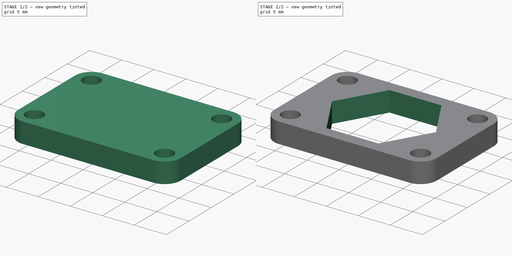
[diagram: build sequence overview — one tinted view per stage of 2, left to right]
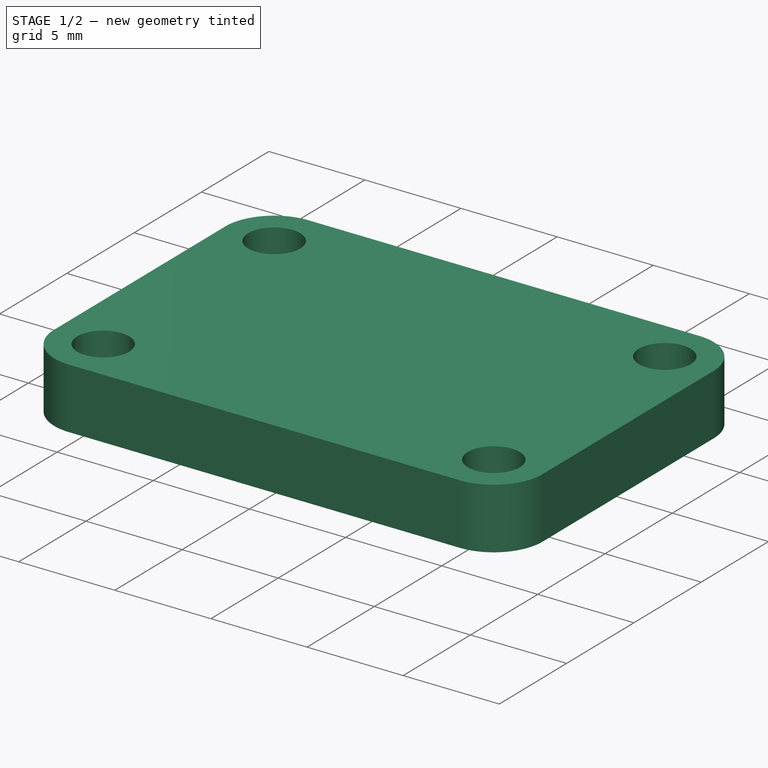
[diagram: stage 1 of 2 — iso view after this stage's code; geometry added in this stage tinted green]
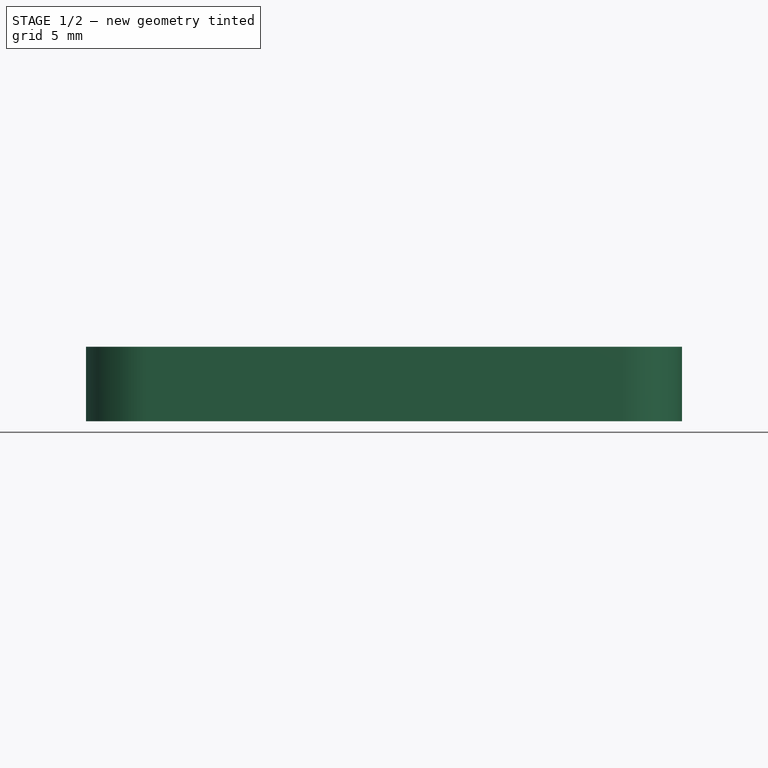
[diagram: stage 1 of 2 — front view after this stage's code; geometry added in this stage tinted green]
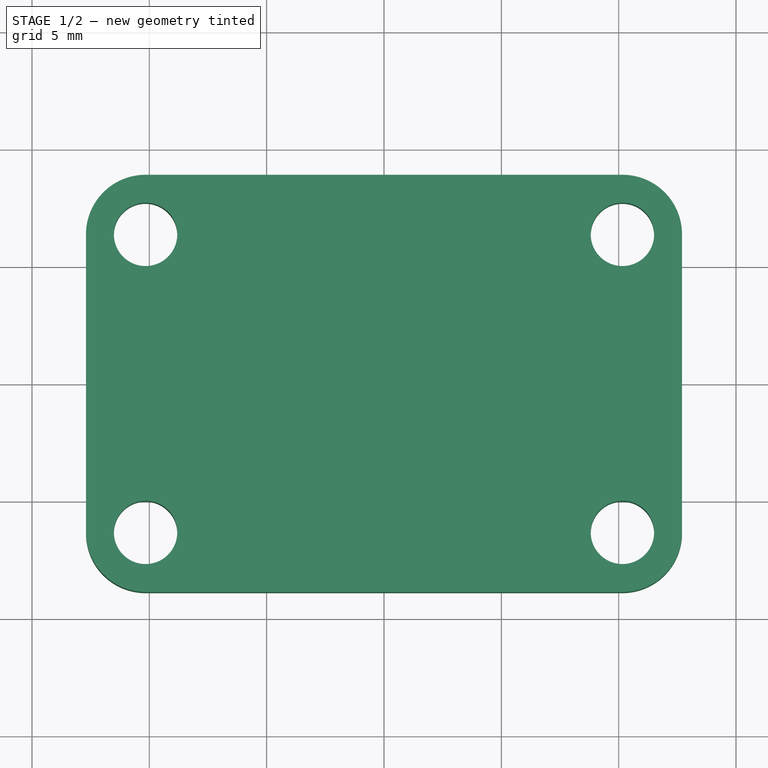
[diagram: stage 1 of 2 — top view after this stage's code; geometry added in this stage tinted green]
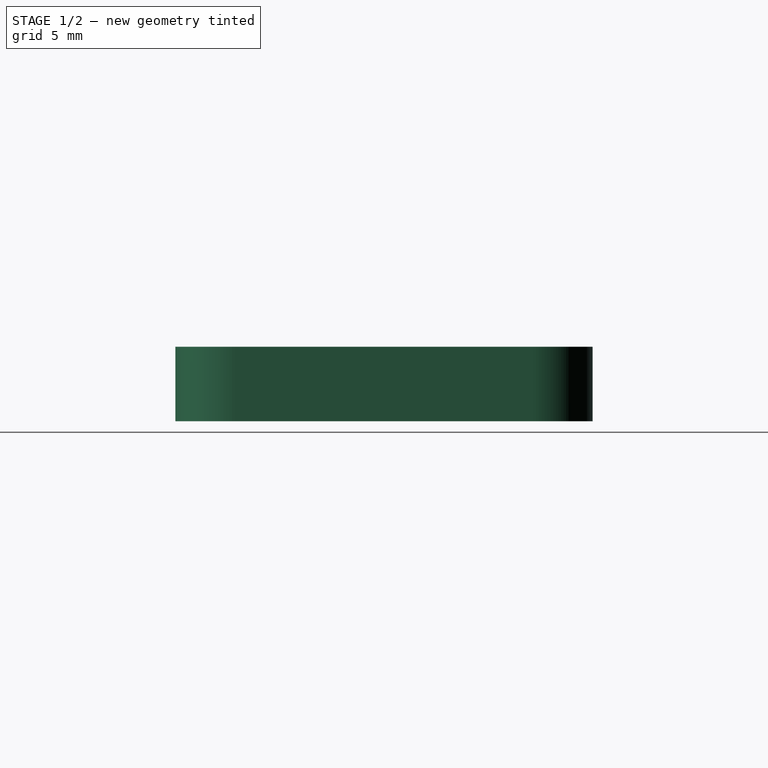
[diagram: stage 1 of 2 — right view after this stage's code; geometry added in this stage tinted green]
FCSTD DOCUMENT  (FreeCAD 0.20R29177 (Git))
Label: specto_mount
License: All rights reserved
LicenseURL: http://en.wikipedia.org/wiki/All_rights_reserved
objects: Sketcher::SketchObject×3, PartDesign::Pocket×2, Spreadsheet::Sheet×1, PartDesign::Pad×1, PartDesign::Body×1
note: 10 computed .brp shape members not serialized (recipe doc carries the construction recipe); baked Part::Feature solids carry a one-line shape summary decoded from their .brp

FEATURE [Spreadsheet::Sheet] Spreadsheet
  cells = A2=Width; B2(Width)==25.4mm; A3=Height; B3(Height)==17.78mm; A4=Thickness; B4(Thickness)==0.125in; A5=CornerRadius; B5(CornerRadius)==0.1in; A6=MountHoleDiameter; B6(MountHoleDiameter)==2.7mm; C6=M2.5 through hole; A7=MountHoleVerticalSpacing; B7(MountHoleVerticalSpacing)==12.7mm; A8=MountHoleHorizontalSpacing; B8(MountHoleHorizontalSpacing)==20.32mm; A9=SensorHexNutShortDiagonal; B9(SensorHexNutShortDiagonal)==14.05mm
FEATURE [Sketcher::SketchObject] Sketch  label="PlateSketch"
  FullyConstrained = true
  MapMode = 5
  Support = -> [XY_Plane]
  expr: Constraints[20] = Spreadsheet.CornerRadius
  expr: Constraints[21] = Spreadsheet.Width
  expr: Constraints[22] = Spreadsheet.Height
  sketch-geometry (10):
    g0: ArcOfCircle CenterX=-10.16 CenterY=6.35 CenterZ=0 NormalX=0 NormalY=0 NormalZ=1 AngleXU=0 Radius=2.54 StartAngle=1.5708 EndAngle=3.14159
    g1: LineSegment StartX=-10.16 StartY=8.89 StartZ=0 EndX=10.16 EndY=8.89 EndZ=0
    g2: ArcOfCircle CenterX=10.16 CenterY=6.35 CenterZ=0 NormalX=0 NormalY=0 NormalZ=1 AngleXU=0 Radius=2.54 StartAngle=5.919e-13 EndAngle=1.5708
    g3: LineSegment StartX=12.7 StartY=6.35 StartZ=0 EndX=12.7 EndY=-6.35 EndZ=0
    g4: ArcOfCircle CenterX=10.16 CenterY=-6.35 CenterZ=0 NormalX=0 NormalY=0 NormalZ=1 AngleXU=0 Radius=2.54 StartAngle=4.71239 EndAngle=6.28319
    g5: LineSegment StartX=10.16 StartY=-8.89 StartZ=0 EndX=-10.16 EndY=-8.89 EndZ=0
    g6: ArcOfCircle CenterX=-10.16 CenterY=-6.35 CenterZ=0 NormalX=0 NormalY=0 NormalZ=1 AngleXU=0 Radius=2.54 StartAngle=3.14159 EndAngle=4.71239
    g7: LineSegment StartX=-12.7 StartY=-6.35 StartZ=0 EndX=-12.7 EndY=6.35 EndZ=0
    g8: GeomPoint X=-12.7 Y=8.89 Z=0
    g9: GeomPoint X=12.7 Y=-8.89 Z=0
  constraints (23):
    c: Tangent(g0,g1) = 1.5708
    c: Tangent(g1,g2) = 1.5708
    c: Tangent(g2,g3) = 1.5708
    c: Tangent(g3,g4) = 1.5708
    c: Tangent(g4,g5) = 1.5708
    c: Tangent(g5,g6) = 1.5708
    c: Tangent(g6,g7) = 1.5708
    c: Tangent(g7,g0) = 1.5708
    c: Horizontal(g1)
    c: Horizontal(g5)
    c: Vertical(g3)
    c: Vertical(g7)
    c: Equal(g0,g2)
    c: Equal(g2,g4)
    c: Equal(g4,g6)
    c: PointOnObject(g8,g1)
    c: PointOnObject(g8,g7)
    c: PointOnObject(g9,g3)
    c: PointOnObject(g9,g5)
    c: Symmetric(g0,g4,g-1)
    c: Radius(g2) = 2.54
    c: DistanceX(g0,g2) = 25.4
    c: DistanceY(g5,g0) = 17.78
FEATURE [PartDesign::Pad] Pad  label="PlatePad"
  Direction = (0,0,1)
  Length = 3.175
  Length2 = 10
  Profile = -> Sketch
  ReferenceAxis = -> Sketch [N_Axis]
  Type = 0
  expr: Length = Spreadsheet.Thickness
FEATURE [Sketcher::SketchObject] Sketch001  label="MountHoleSketch"
  FullyConstrained = true
  MapMode = 5
  Support = -> [XY_Plane]
  expr: Constraints[13] = Spreadsheet.MountHoleDiameter
  expr: Constraints[17] = Spreadsheet.MountHoleHorizontalSpacing
  expr: Constraints[18] = Spreadsheet.MountHoleVerticalSpacing
  sketch-geometry (8):
    g0: LineSegment StartX=-10.16 StartY=6.35 StartZ=0 EndX=10.16 EndY=6.35 EndZ=0
    g1: LineSegment StartX=10.16 StartY=6.35 StartZ=0 EndX=10.16 EndY=-6.35 EndZ=0
    g2: LineSegment StartX=10.16 StartY=-6.35 StartZ=0 EndX=-10.16 EndY=-6.35 EndZ=0
    g3: LineSegment StartX=-10.16 StartY=-6.35 StartZ=0 EndX=-10.16 EndY=6.35 EndZ=0
    g4: Circle CenterX=-10.16 CenterY=6.35 CenterZ=0 NormalX=0 NormalY=0 NormalZ=1 AngleXU=0 Radius=1.35
    g5: Circle CenterX=-10.16 CenterY=-6.35 CenterZ=0 NormalX=0 NormalY=0 NormalZ=1 AngleXU=0 Radius=1.35
    g6: Circle CenterX=10.16 CenterY=6.35 CenterZ=0 NormalX=0 NormalY=0 NormalZ=1 AngleXU=0 Radius=1.35
    g7: Circle CenterX=10.16 CenterY=-6.35 CenterZ=0 NormalX=0 NormalY=0 NormalZ=1 AngleXU=0 Radius=1.35
  constraints (19):
    c: Coincident(g0,g1)
    c: Coincident(g1,g2)
    c: Coincident(g2,g3)
    c: Coincident(g3,g0)
    c: Horizontal(g0)
    c: Horizontal(g2)
    c: Vertical(g1)
    c: Vertical(g3)
    c: Symmetric(g0,g1,g-1)
    c: Coincident(g4,g0)
    c: Coincident(g0,g6)
    c: Coincident(g5,g2)
    c: Coincident(g7,g1)
    c: Diameter(g6) = 2.7
    c: Equal(g6,g4)
    c: Equal(g4,g5)
    c: Equal(g5,g7)
    c: DistanceX(g0,g0) = 20.32
    c: DistanceY(g1,g1) = 12.7
FEATURE [PartDesign::Pocket] Pocket  label="MountHolePocket"
  BaseFeature = -> Pad
  Direction = (0,0,-1)
  Length = 5
  Length2 = 5
  Profile = -> Sketch001
  ReferenceAxis = -> Sketch001 [N_Axis]
  Reversed = true
  Type = 1
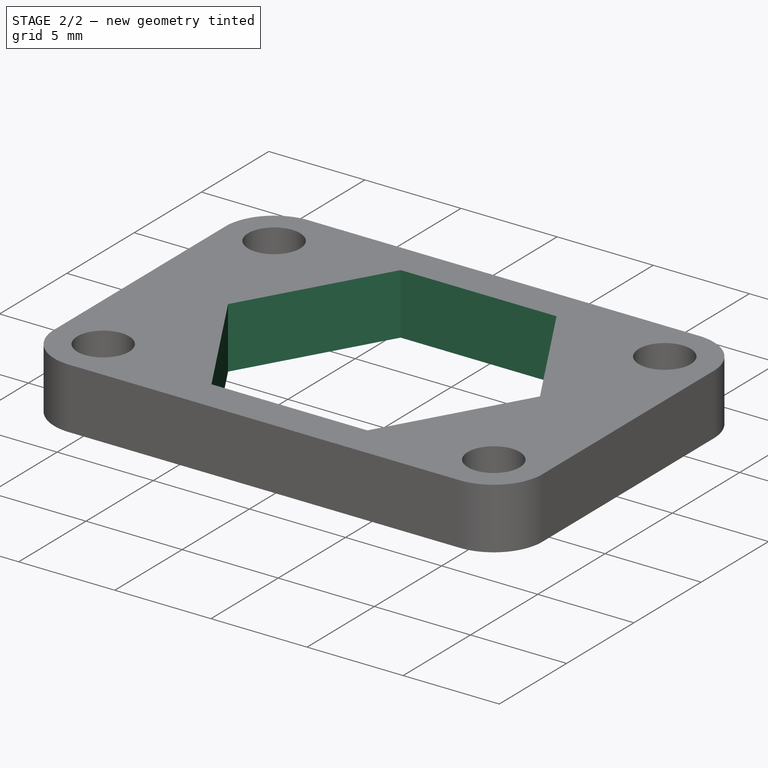
[diagram: stage 2 of 2 — iso view after this stage's code; geometry added in this stage tinted green]
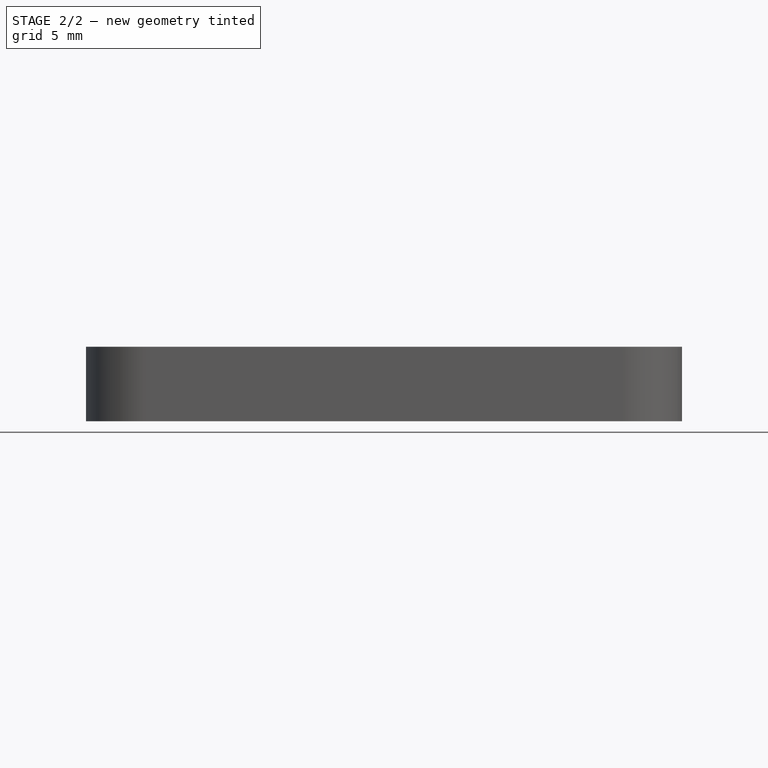
[diagram: stage 2 of 2 — front view after this stage's code; geometry added in this stage tinted green]
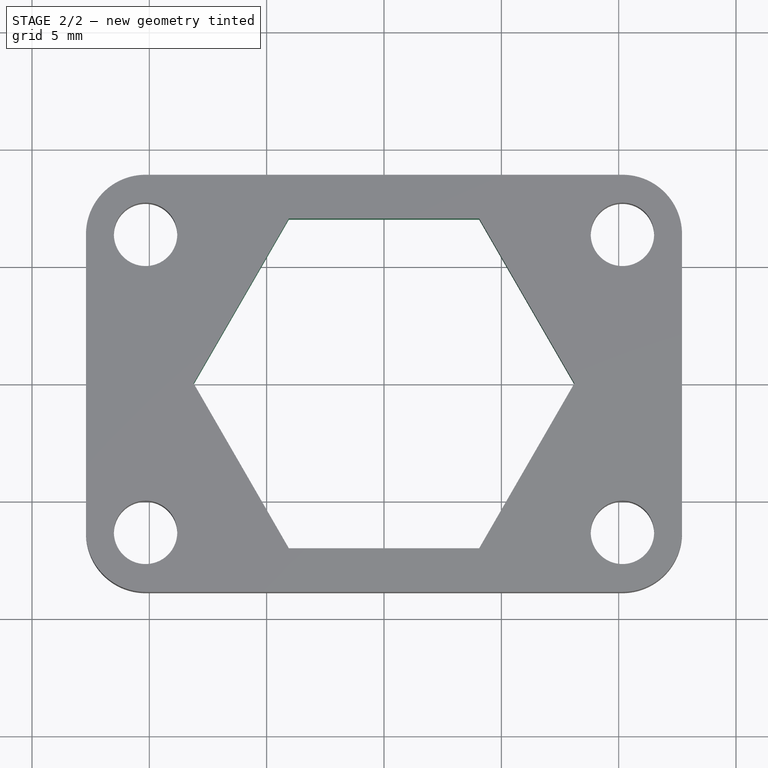
[diagram: stage 2 of 2 — top view after this stage's code; geometry added in this stage tinted green]
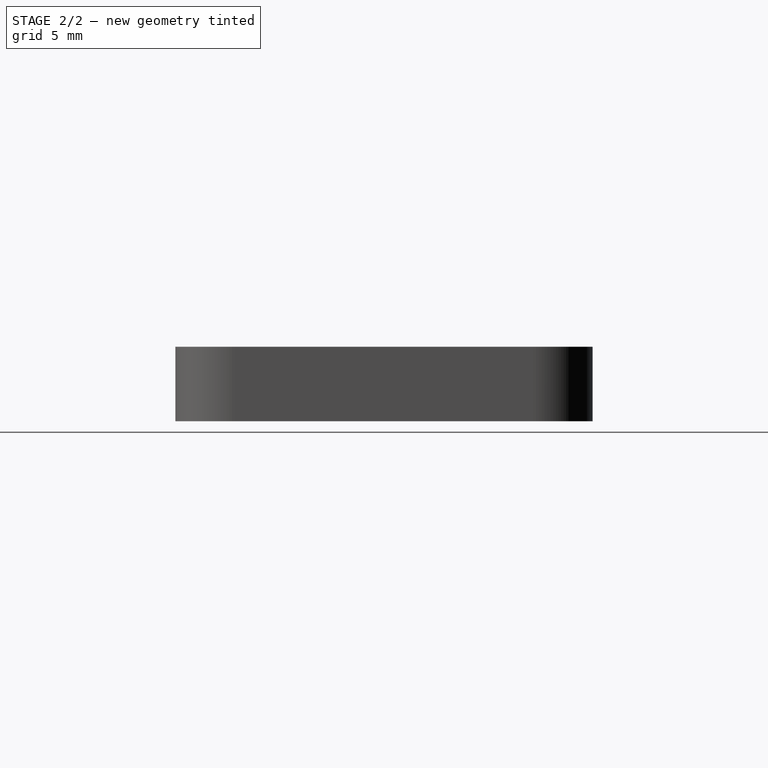
[diagram: stage 2 of 2 — right view after this stage's code; geometry added in this stage tinted green]
FEATURE [Sketcher::SketchObject] Sketch002  label="SensorHexMountSketch"
  FullyConstrained = true
  MapMode = 5
  Support = -> [XY_Plane]
  expr: Constraints[19] = Spreadsheet.SensorHexNutShortDiagonal
  sketch-geometry (7):
    g0: LineSegment StartX=4.05589 StartY=-7.025 StartZ=0 EndX=8.11177 EndY=2.65903e-11 EndZ=0
    g1: LineSegment StartX=8.11177 StartY=2.65903e-11 StartZ=0 EndX=4.05589 EndY=7.025 EndZ=0
    g2: LineSegment StartX=4.05589 StartY=7.025 StartZ=0 EndX=-4.05589 EndY=7.025 EndZ=0
    g3: LineSegment StartX=-4.05589 StartY=7.025 StartZ=0 EndX=-8.11177 EndY=2.9222e-11 EndZ=0
    g4: LineSegment StartX=-8.11177 StartY=2.9222e-11 StartZ=0 EndX=-4.05589 EndY=-7.025 EndZ=0
    g5: LineSegment StartX=-4.05589 StartY=-7.025 StartZ=0 EndX=4.05589 EndY=-7.025 EndZ=0
    g6: Circle CenterX=0 CenterY=0 CenterZ=0 NormalX=0 NormalY=0 NormalZ=1 AngleXU=0 Radius=8.11177
  constraints (16):
    c: Coincident(g0,g1)
    c: Coincident(g1,g2)
    c: Coincident(g2,g3)
    c: Coincident(g3,g4)
    c: Coincident(g4,g5)
    c: Coincident(g5,g0)
    c: Equal(g0, g1-g5) x5
    c: PointOnObject(g0,g6)
    c: PointOnObject(g1,g6)
    c: PointOnObject(g2,g6)
    c: PointOnObject(g3,g6)
    c: PointOnObject(g4,g6)
    c: PointOnObject(g5,g6)
    c: Horizontal(g2)
    c: Coincident(g6,g-1)
    c: DistanceY(g0,g1) = 14.05
FEATURE [PartDesign::Pocket] Pocket001  label="SensorHexMountPocket"
  BaseFeature = -> Pocket
  Direction = (0,0,-1)
  Length = 5
  Length2 = 5
  Profile = -> Sketch002
  ReferenceAxis = -> Sketch002 [N_Axis]
  Reversed = true
  Type = 1
FEATURE [PartDesign::Body] Body
  Group = -> [Sketch,Pad,Sketch001,Pocket,Sketch002,Pocket001]
  Origin = -> Origin
  Tip = -> Pocket001
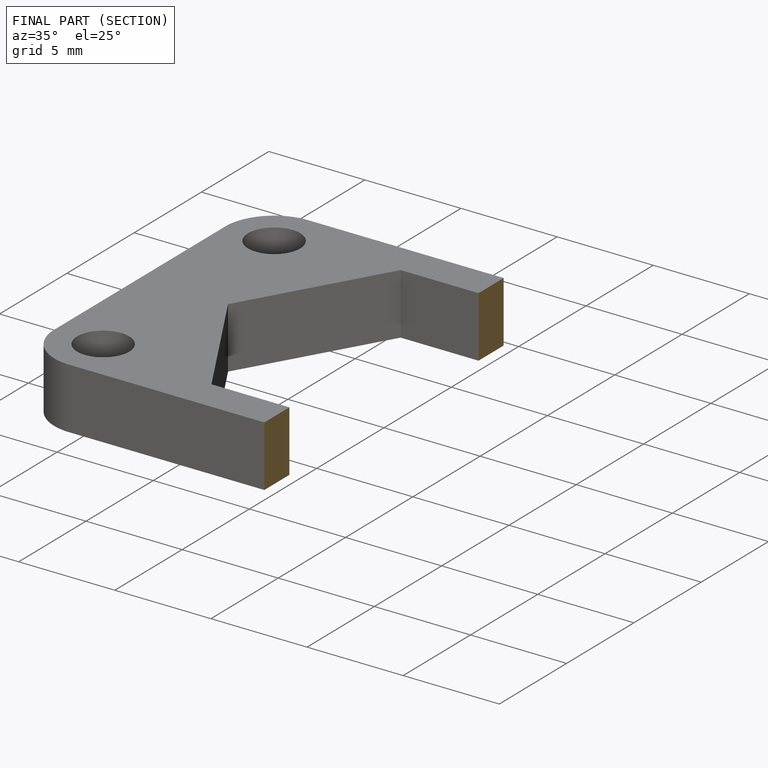
[diagram: finished part — half-section view (interior)]
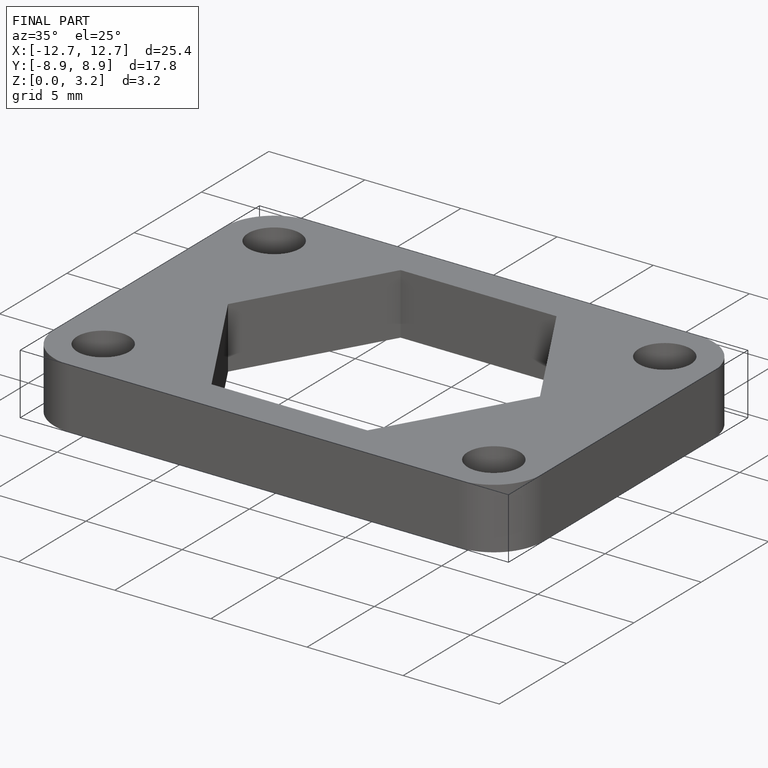
[diagram: finished part — iso view with bounding-box wireframe]
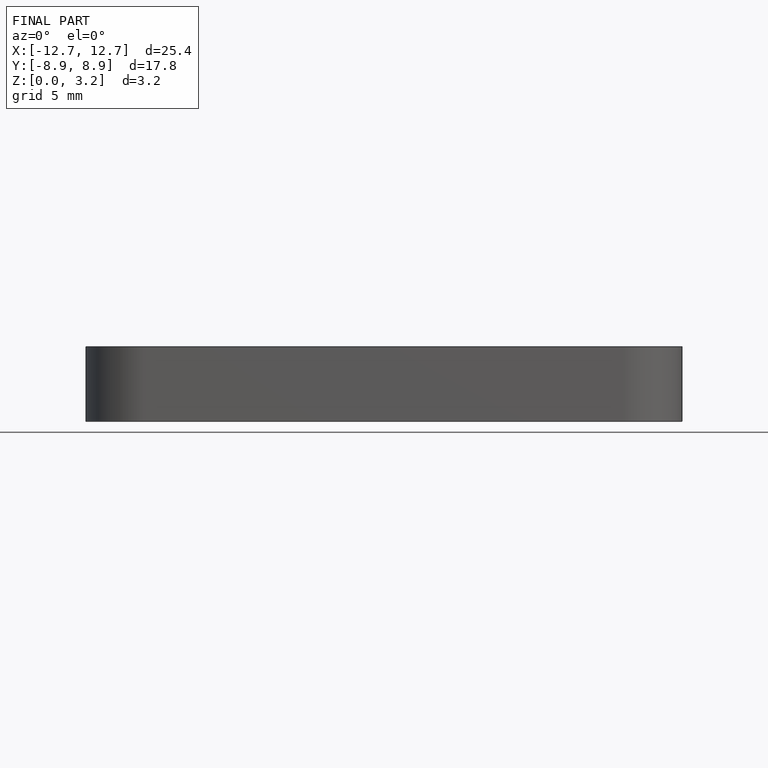
[diagram: finished part — front view with bounding-box wireframe]
